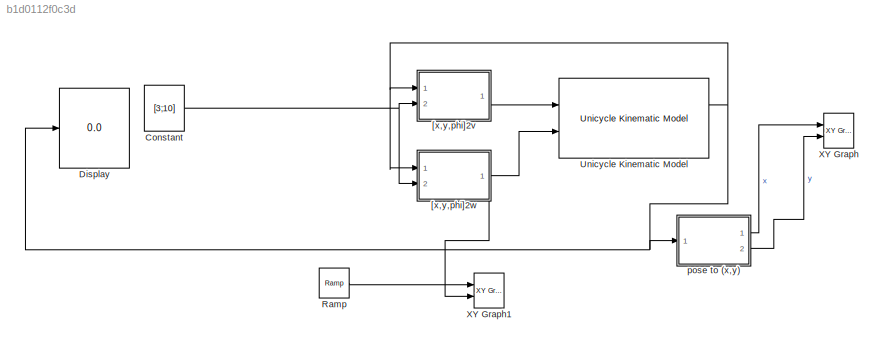
MODEL slx_b1d0112f0c3d
KIND model
CONFIG AbsTol = auto
CONFIG EnableMultiTasking = off
CONFIG FixedStep = auto
CONFIG MaxStep = auto
CONFIG MinStep = auto
CONFIG RelTol = 1e-3
CONFIG SampleTimeConstraint = Unconstrained
CONFIG SolverName = VariableStepAuto
CONFIG StartTime = 0.0
CONFIG StopTime = 50
BLOCK [Constant] Constant
  Value = [3;10]
  VectorParams1D = off
BLOCK [Display] Display
  Decimation = 1
  Ports = [1]
BLOCK [Reference] Ramp  REF=simulink/Sources/Ramp
  Ports = [0, 1]
  SourceBlock = simulink/Sources/Ramp
  SourceProductBaseCode = SL
  SourceType = Ramp
BLOCK [Reference] Unicycle Kinematic Model  REF=robotmobilelib/Unicycle Kinematic Model
  Ports = [2, 2]
  SourceBlock = robotmobilelib/Unicycle Kinematic Model
  SourceProductBaseCode = RO
  SourceType = Unicycle Kinematic Model
BLOCK [Reference] XY Graph  REF=simulink/Sinks/XY Graph
  Ports = [2]
  SourceBlock = simulink/Sinks/XY Graph
  SourceProductBaseCode = SL
  SourceType = XY scope.
BLOCK [Reference] XY Graph1  REF=simulink/Sinks/XY Graph
  Ports = [2]
  SourceBlock = simulink/Sinks/XY Graph
  SourceProductBaseCode = SL
  SourceType = XY scope.
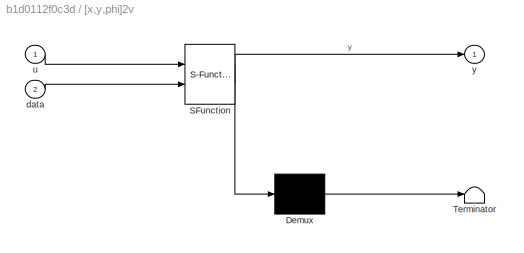
BLOCK [SubSystem] [x,y,phi]2v
  ErrorFcn = Stateflow.Translate.translate
  PermitHierarchicalResolution = ExplicitOnly
  Ports = [2, 1]
  RequestExecContextInheritance = off
  SFBlockType = MATLAB Function
  TreatAsAtomicUnit = on
BLOCK [Demux] [x,y,phi]2v/ Demux 
  Outputs = 1
  Ports = [1, 1]
BLOCK [S-Function] [x,y,phi]2v/ SFunction 
  EnableBusSupport = on
  FunctionName = sf_sfun
  PortCounts = [2 2]
  Ports = [2, 2]
  SFcnIsStateOwnerBlock = off
  SFunctionDeploymentMode = off
  Tag = Stateflow S-Function 2
BLOCK [Terminator] [x,y,phi]2v/ Terminator 
BLOCK [Inport] [x,y,phi]2v/data
  Port = 2
BLOCK [Inport] [x,y,phi]2v/u
BLOCK [Outport] [x,y,phi]2v/y
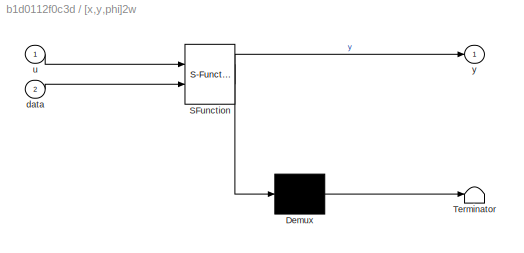
BLOCK [SubSystem] [x,y,phi]2w
  ErrorFcn = Stateflow.Translate.translate
  PermitHierarchicalResolution = ExplicitOnly
  Ports = [2, 1]
  RequestExecContextInheritance = off
  SFBlockType = MATLAB Function
  TreatAsAtomicUnit = on
BLOCK [Demux] [x,y,phi]2w/ Demux 
  Outputs = 1
  Ports = [1, 1]
BLOCK [S-Function] [x,y,phi]2w/ SFunction 
  EnableBusSupport = on
  FunctionName = sf_sfun
  PortCounts = [2 2]
  Ports = [2, 2]
  SFcnIsStateOwnerBlock = off
  SFunctionDeploymentMode = off
  Tag = Stateflow S-Function 1
BLOCK [Terminator] [x,y,phi]2w/ Terminator 
BLOCK [Inport] [x,y,phi]2w/data
  Port = 2
BLOCK [Inport] [x,y,phi]2w/u
BLOCK [Outport] [x,y,phi]2w/y
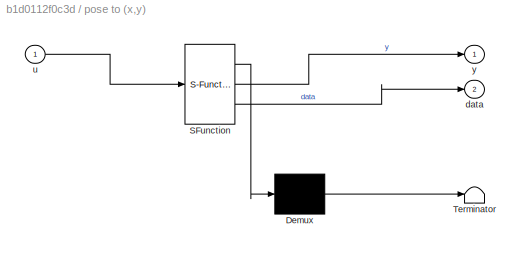
BLOCK [SubSystem] pose to (x,y)
  ErrorFcn = Stateflow.Translate.translate
  PermitHierarchicalResolution = ExplicitOnly
  Ports = [1, 2]
  RequestExecContextInheritance = off
  SFBlockType = MATLAB Function
  TreatAsAtomicUnit = on
BLOCK [Demux] pose to (x,y)/ Demux 
  Outputs = 1
  Ports = [1, 1]
BLOCK [S-Function] pose to (x,y)/ SFunction 
  EnableBusSupport = on
  FunctionName = sf_sfun
  PortCounts = [1 3]
  Ports = [1, 3]
  SFcnIsStateOwnerBlock = off
  SFunctionDeploymentMode = off
  Tag = Stateflow S-Function 3
BLOCK [Terminator] pose to (x,y)/ Terminator 
BLOCK [Outport] pose to (x,y)/data
  Port = 2
BLOCK [Inport] pose to (x,y)/u
BLOCK [Outport] pose to (x,y)/y
NET Constant:1 -> [x,y,phi]2v:2, [x,y,phi]2w:2
LINE Ramp:1 -> XY Graph1:1
NET Unicycle Kinematic Model:1 -> Display:1, [x,y,phi]2v:1, [x,y,phi]2w:1, pose to (x,y):1
LINE [x,y,phi]2v:1 -> Unicycle Kinematic Model:1
NET [x,y,phi]2w:1 -> Unicycle Kinematic Model:2, XY Graph1:2
LINE pose to (x,y):1 -> XY Graph:1
LINE pose to (x,y):2 -> XY Graph:2
note: NET lines group one-source signal fan-out (src -> all destinations, sorted); 1:1 wires keep LINE
CHART [x,y,phi]2v states=1 transitions=1
  STATE_LABEL 'eML_blk_kernel()'
  STATE_LABEL "SCRIPT:\nfunction y = fcn(u, data)\nfd=[data(1)-u(1) data(2)-u(2)];\nhi=[cos(u(3)) sin(u(3))];\n% hip=[-sin(u(3)) cos(u(3))];\ny = norm(hi.*(hi*fd'),2);\n"
CHART pose to (x,y) states=1 transitions=1
  STATE_LABEL 'eML_blk_kernel()'
  STATE_LABEL 'SCRIPT:\nfunction [y,data] = fcn(u)\ny=u(1);\ndata = u(2);\n'
CHART [x,y,phi]2w states=1 transitions=1
  STATE_LABEL 'eML_blk_kernel()'
  STATE_LABEL "SCRIPT:\nfunction y = fcn(u, data)\nfd=[data(1)-u(1) data(2)-u(2)];\n% hi=[cos(u(3)) sin(u(3))];\nhip=[-sin(u(3)) cos(u(3))];\ny =(hip*fd');\n"
CHART  states=0 transitions=0
CHART  states=0 transitions=0
CHART  states=0 transitions=0
